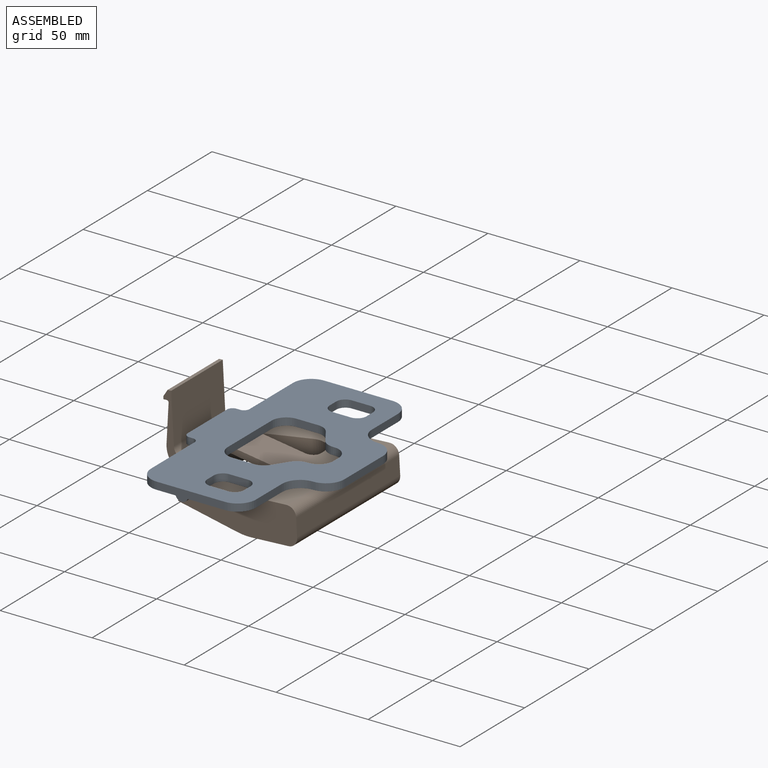
[diagram: assembled view]
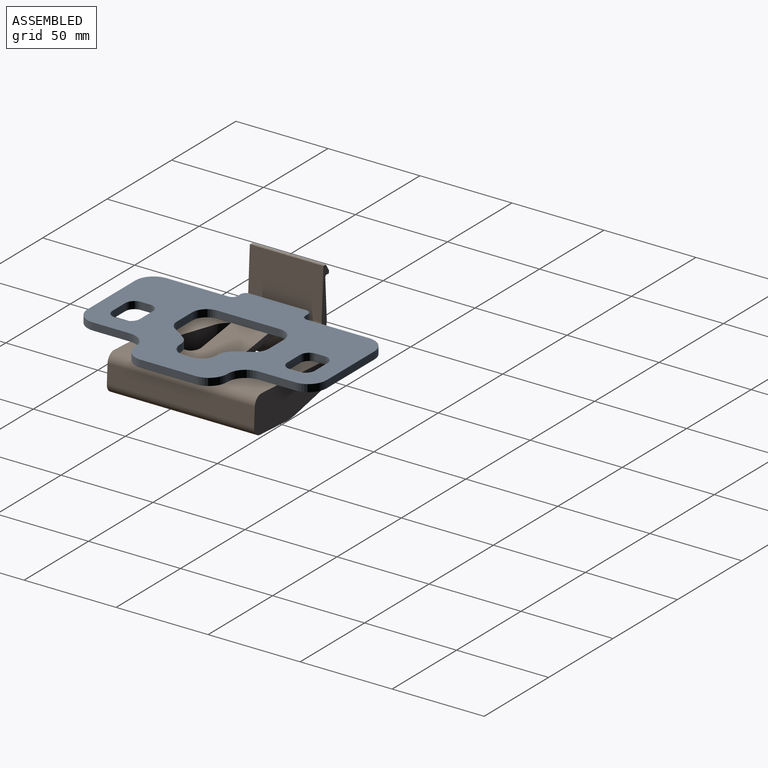
[diagram: assembled view, second angle]
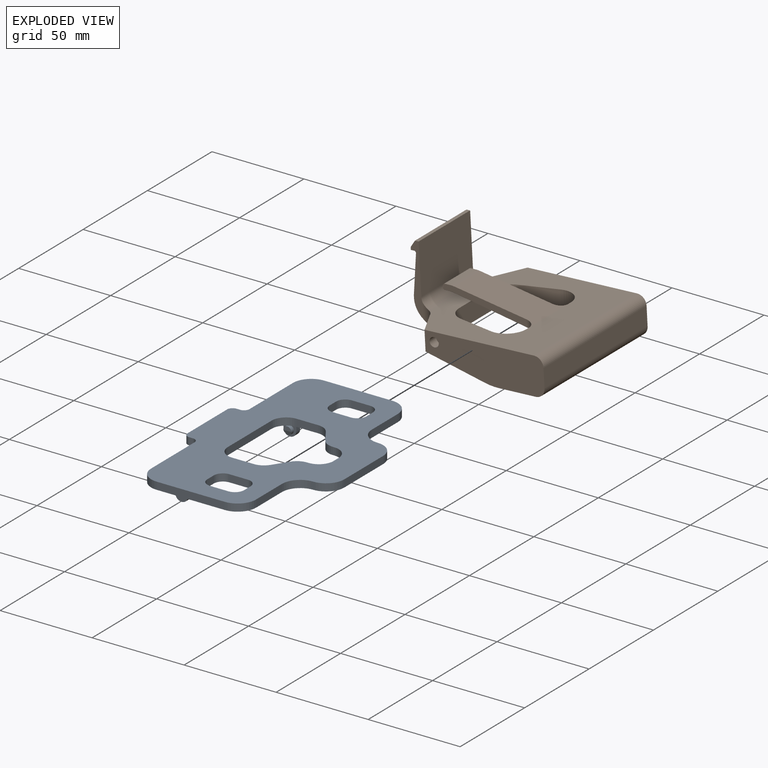
[diagram: exploded view]
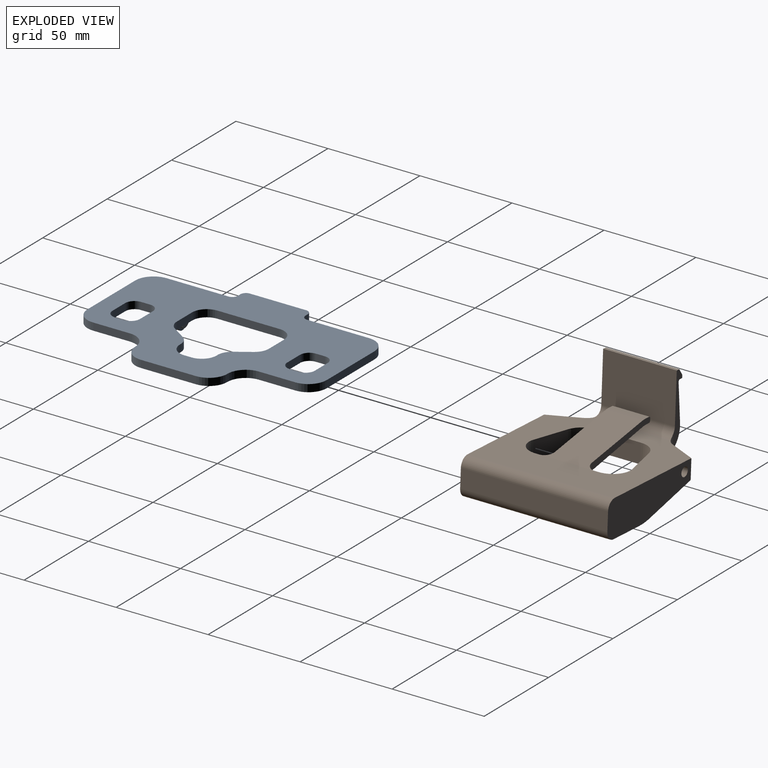
[diagram: exploded view, second angle]
ASSEMBLY  parts=2 mates=2
PART A: 80 faces, bbox 85x130x18.5 mm
  f0: plane 130x85mm, normal (0,0,1), area 5761.4mm2, adj f9,f10,f11,f12,f13,f14,f15,f16
  f1: plane 130x85mm, normal (0,0,-1), area 6305.4mm2, adj f9,f10,f11,f12,f13,f14,f15,f16
  f2: plane 4.33x2.17mm, normal (0,1,0), area 7.4mm2, adj f3,f42
  f3: cylinder r=2.17mm len=4.33mm, axis (0,-1,0), area 23.8mm2, adj f2,f8,f42
  f4: plane 6x3.58mm, normal (1,0,0), area 18.6mm2, adj f5,f7,f8,f35,f41
  f5: cylinder r=3.5mm len=7mm, axis (0,1,0), area 33mm2, adj f4,f6,f7,f8
  f6: plane 6x3.58mm, normal (-1,0,0), area 18.6mm2, adj f5,f7,f8,f35,f39
  f7: plane 7x6.5mm, normal (0,-1,0), area 40.2mm2, adj f4,f5,f6,f35
  f8: plane 9.5x7mm, normal (0,1,0), area 46.5mm2, adj f3,f4,f5,f6,f40
  f9: plane 33.67x4mm, normal (-1,0,0), area 134.7mm2, adj f0,f1,f21,f39,f45
  f10: plane 20x4mm, normal (1,0,0), area 80mm2, adj f0,f1,f20,f26
  f11: plane 20x4mm, normal (1,0,0), area 80mm2, adj f0,f1,f22,f24
  f12: plane 33.67x4mm, normal (-1,0,0), area 134.7mm2, adj f0,f1,f19,f36,f44
  f13: plane 37x4mm, normal (0,-1,0), area 148mm2, adj f0,f1,f21,f22
  f14: plane 37x4mm, normal (0,1,0), area 148mm2, adj f0,f1,f19,f20
  f15: plane 30x4mm, normal (1,0,0), area 120mm2, adj f0,f1,f23,f25
  f16: plane 4x2mm, normal (0,1,0), area 8mm2, adj f0,f1,f44,f46
  f17: plane 4x2mm, normal (0,-1,0), area 8mm2, adj f0,f1,f45,f47
  f18: plane 30.67x4mm, normal (-1,0,0), area 122.7mm2, adj f0,f1,f46,f47
  f19: cylinder r=10mm len=10mm, axis (0,0,-1), area 62.8mm2, adj f0,f1,f12,f14
  f20: cylinder r=10mm len=10mm, axis (0,0,-1), area 62.8mm2, adj f0,f1,f10,f14
  f21: cylinder r=10mm len=10mm, axis (0,0,1), area 62.8mm2, adj f0,f1,f9,f13
  f22: cylinder r=10mm len=10mm, axis (0,0,1), area 62.8mm2, adj f0,f1,f11,f13
  f23: cylinder r=10mm len=10mm, axis (0,0,-1), area 62.8mm2, adj f0,f1,f15,f24
  f24: cylinder r=10mm len=10mm, axis (0,0,-1), area 62.8mm2, adj f0,f1,f11,f23
  f25: cylinder r=10mm len=10mm, axis (0,0,1), area 62.8mm2, adj f0,f1,f15,f26
  f26: cylinder r=10mm len=10mm, axis (0,0,1), area 62.8mm2, adj f0,f1,f10,f25
  f27: plane 6x3.58mm, normal (-1,0,0), area 18.6mm2, adj f28,f30,f31,f34,f36
  f28: cylinder r=3.5mm len=7mm, axis (0,-1,0), area 33mm2, adj f27,f29,f30,f31
  f29: plane 6x3.58mm, normal (1,0,0), area 18.6mm2, adj f28,f30,f31,f34,f38
  f30: plane 7x6.5mm, normal (0,1,0), area 40.2mm2, adj f27,f28,f29,f34
  f31: plane 9.5x7mm, normal (0,-1,0), area 46.5mm2, adj f27,f28,f29,f32,f37
  f32: cylinder r=2.17mm len=4.33mm, axis (0,1,0), area 23.8mm2, adj f31,f33,f43
  f33: plane 4.33x2.17mm, normal (0,-1,0), area 7.4mm2, adj f32,f43
  f34: cylinder r=8mm len=17mm, axis (1,0,0), area 123.6mm2, adj f0,f27,f29,f30,f36,f38
  f35: cylinder r=8mm len=17mm, axis (1,0,0), area 123.6mm2, adj f0,f4,f6,f7,f39,f41
  f36: cylinder r=5mm len=16mm, axis (0,1,0), area 66.9mm2, adj f12,f27,f34,f37
  f37: cylinder r=5mm len=17mm, axis (-1,0,0), area 83.5mm2, adj f0,f31,f36,f38
  f38: cylinder r=5mm len=16mm, axis (0,1,0), area 66.9mm2, adj f0,f29,f34,f37
  f39: cylinder r=5mm len=16mm, axis (0,1,0), area 66.9mm2, adj f6,f9,f35,f40
  f40: cylinder r=5mm len=17mm, axis (-1,0,0), area 83.5mm2, adj f0,f8,f39,f41
  f41: cylinder r=5mm len=16mm, axis (0,1,0), area 66.9mm2, adj f0,f4,f35,f40
  f42: plane 4.33x2.17mm, normal (0,0.94,0.34), area 7.8mm2, adj f2,f3
  f43: plane 4.33x2.17mm, normal (0,-0.94,0.34), area 7.8mm2, adj f32,f33
  f44: cylinder r=3mm len=4mm, axis (0,0,-1), area 18.8mm2, adj f0,f1,f12,f16
  f45: cylinder r=3mm len=4mm, axis (0,0,1), area 18.8mm2, adj f0,f1,f9,f17
  f46: cylinder r=3mm len=4mm, axis (0,0,-1), area 18.8mm2, adj f0,f1,f16,f18
  f47: cylinder r=3mm len=4mm, axis (0,0,1), area 18.8mm2, adj f0,f1,f17,f18
  f48: plane 4x4mm, normal (-1,0,0), area 16mm2, adj f0,f1,f49,f63
  f49: cylinder r=8mm len=8mm, axis (0,0,1), area 50.3mm2, adj f0,f1,f48,f50
  f50: plane 4x0.72mm, normal (0,-1,0), area 2.9mm2, adj f0,f1,f49,f51
  f51: cylinder r=8mm len=6.66mm, axis (0,0,1), area 31.4mm2, adj f0,f1,f50,f52
  f52: plane 7.88x5.25mm, normal (-0.83,-0.55,0), area 37.9mm2, adj f0,f1,f51,f53
  f53: cylinder r=8mm len=6.66mm, axis (0,0,1), area 31.4mm2, adj f0,f1,f52,f54
  f54: plane 11.72x4mm, normal (0,-1,0), area 46.9mm2, adj f0,f1,f53,f55
  f55: cylinder r=8mm len=8mm, axis (0,0,1), area 50.3mm2, adj f0,f1,f54,f56
  f56: plane 34x4mm, normal (1,0,0), area 136mm2, adj f0,f1,f55,f57
  f57: cylinder r=8mm len=8mm, axis (0,0,1), area 50.3mm2, adj f0,f1,f56,f58
  f58: plane 11.72x4mm, normal (0,1,0), area 46.9mm2, adj f0,f1,f57,f59
  f59: cylinder r=8mm len=6.66mm, axis (0,0,1), area 31.4mm2, adj f0,f1,f58,f60
  f60: plane 7.88x5.25mm, normal (-0.83,0.55,0), area 37.9mm2, adj f0,f1,f59,f61
  f61: cylinder r=8mm len=6.66mm, axis (0,0,1), area 31.4mm2, adj f0,f1,f60,f62
  f62: plane 4x0.72mm, normal (0,1,0), area 2.9mm2, adj f0,f1,f61,f63
  f63: cylinder r=8mm len=8mm, axis (0,0,1), area 50.3mm2, adj f0,f1,f48,f62
  f64: plane 5x4mm, normal (-1,0,0), area 20mm2, adj f0,f1,f65,f71
  f65: cylinder r=5mm len=5mm, axis (0,0,1), area 31.4mm2, adj f0,f1,f64,f66
  f66: plane 10x4mm, normal (0,-1,0), area 40mm2, adj f0,f1,f65,f67
  f67: cylinder r=5mm len=5mm, axis (0,0,1), area 31.4mm2, adj f0,f1,f66,f68
  f68: plane 5x4mm, normal (1,0,0), area 20mm2, adj f0,f1,f67,f69
  f69: cylinder r=5mm len=5mm, axis (0,0,1), area 31.4mm2, adj f0,f1,f68,f70
  f70: plane 10x4mm, normal (0,1,0), area 40mm2, adj f0,f1,f69,f71
  f71: cylinder r=5mm len=5mm, axis (0,0,1), area 31.4mm2, adj f0,f1,f64,f70
  f72: plane 5x4mm, normal (1,0,0), area 20mm2, adj f0,f1,f73,f79
  f73: cylinder r=5mm len=5mm, axis (0,0,1), area 31.4mm2, adj f0,f1,f72,f74
  f74: plane 10x4mm, normal (0,1,0), area 40mm2, adj f0,f1,f73,f75
  f75: cylinder r=5mm len=5mm, axis (0,0,1), area 31.4mm2, adj f0,f1,f74,f76
  f76: plane 5x4mm, normal (-1,0,0), area 20mm2, adj f0,f1,f75,f77
  f77: cylinder r=5mm len=5mm, axis (0,0,1), area 31.4mm2, adj f0,f1,f76,f78
  f78: plane 10x4mm, normal (0,-1,0), area 40mm2, adj f0,f1,f77,f79
  f79: cylinder r=5mm len=5mm, axis (0,0,1), area 31.4mm2, adj f0,f1,f72,f78
PART B: 69 faces, bbox 84.6x80.1x52.1 mm
  f0: plane 4.07x2.19mm, normal (-1,0,0), area 8.7mm2, adj f2,f34,f40,f41,f55
  f1: plane 4.07x2.19mm, normal (-1,0,0), area 8.7mm2, adj f2,f33,f39,f40,f56
  f2: plane 80x70mm, normal (0,0,1), area 3482.6mm2, adj f0,f1,f5,f14,f15,f16,f22,f23
  f3: cylinder r=30mm len=22.81mm, axis (0,1,0), area 121mm2, adj f13,f14,f18,f33
  f4: plane 40x1.43mm, normal (-1,0,0), area 57.2mm2, adj f8,f9,f21,f24
  f5: cylinder r=5mm len=42.7mm, axis (0,1,0), area 318.2mm2, adj f2,f6,f21,f22,f24,f25
  f6: plane 40x27mm, normal (1,0,0), area 1080.1mm2, adj f5,f7,f21,f24
  f7: plane 40x2mm, normal (0,0,1), area 80mm2, adj f6,f8,f21,f24
  f8: plane 40x3.57mm, normal (-0.82,0,0.57), area 174.3mm2, adj f4,f7,f21,f24
  f9: plane 40x1.75mm, normal (0,0,-1), area 69.8mm2, adj f4,f10,f21,f24
  f10: cylinder r=1mm len=40mm, axis (0,1,0), area 67.2mm2, adj f9,f11,f21,f24
  f11: plane 40x20.48mm, normal (-0.99,0,0.11), area 823.9mm2, adj f10,f12,f21,f24
  f12: cylinder r=12.29mm len=42.78mm, axis (0,1,0), area 702.5mm2, adj f11,f13,f21,f22,f24,f25
  f13: plane 80.1x42.34mm, normal (-0.26,0,-0.97), area 1696.4mm2, adj f3,f12,f14,f15,f17,f22,f23,f25
  f14: plane 64.5x20mm, normal (0,-1,0), area 1091.1mm2, adj f2,f3,f13,f16,f18,f19,f20,f26
  f15: plane 64.5x20mm, normal (0,1,0), area 1091.1mm2, adj f2,f13,f16,f17,f18,f19,f20,f23
  f16: cylinder r=5mm len=80mm, axis (0,1,0), area 628.3mm2, adj f2,f14,f15,f20
  f17: cylinder r=30mm len=22.81mm, axis (0,1,0), area 121mm2, adj f13,f15,f18,f34
  f18: plane 80x20.01mm, normal (0,0,-1), area 1600.6mm2, adj f3,f14,f15,f17,f19,f27
  f19: cylinder r=5mm len=80mm, axis (0,1,0), area 628.3mm2, adj f14,f15,f18,f20
  f20: plane 80x10mm, normal (1,0,0), area 800mm2, adj f14,f15,f16,f19
  f21: plane 37.53x5.06mm, normal (0,1,0), area 115.2mm2, adj f4,f5,f6,f7,f8,f9,f10,f11
  f22: cylinder r=8mm len=11.21mm, axis (0,0,-1), area 69.6mm2, adj f2,f5,f12,f13,f21,f23
  f23: plane 15.58x10.56mm, normal (-0.89,0.45,0), area 166mm2, adj f2,f13,f15,f22
  f24: plane 37.53x5.06mm, normal (0,-1,0), area 115.2mm2, adj f4,f5,f6,f7,f8,f9,f10,f11
  f25: cylinder r=8mm len=11.21mm, axis (0,0,-1), area 69.6mm2, adj f2,f5,f12,f13,f24,f26
  f26: plane 15.58x10.56mm, normal (-0.89,-0.45,0), area 166mm2, adj f2,f13,f14,f25
  f27: plane 34.38x4.1mm, normal (-1,0,0), area 137.6mm2, adj f18,f33,f34,f37,f38,f42
  f28: plane 20x17.74mm, normal (0.24,0.97,0), area 311.1mm2, adj f2,f13,f29,f33
  f29: cylinder r=10mm len=12.44mm, axis (0,0,-1), area 147.7mm2, adj f2,f13,f28,f30
  f30: plane 24.38x10.43mm, normal (1,0,0), area 254.3mm2, adj f2,f13,f29,f31
  f31: cylinder r=10mm len=12.44mm, axis (0,0,-1), area 147.7mm2, adj f2,f13,f30,f32
  f32: plane 20x17.74mm, normal (0.24,-0.97,0), area 311.1mm2, adj f2,f13,f31,f34
  f33: cylinder r=10mm len=20mm, axis (0,0,-1), area 314.1mm2, adj f1,f2,f3,f13,f27,f28,f35,f38
  f34: cylinder r=10mm len=20mm, axis (0,0,-1), area 314.1mm2, adj f0,f2,f13,f17,f27,f32,f36,f41
  f35: plane 15.84x2.03mm, normal (0,1,0), area 32.2mm2, adj f33,f38,f39,f68
  f36: plane 15.84x2.03mm, normal (0,-1,0), area 32.2mm2, adj f34,f41,f42,f61
  f37: plane 32.38x15mm, normal (0,0,1), area 485.8mm2, adj f27,f38,f42,f65
  f38: cylinder r=5mm len=15.84mm, axis (-1,0,0), area 120.7mm2, adj f27,f33,f35,f37,f67
  f39: cylinder r=5mm len=15.84mm, axis (-1,0,0), area 120.7mm2, adj f1,f33,f35,f40,f66
  f40: plane 32.38x15mm, normal (0,0,-1), area 485.8mm2, adj f0,f1,f39,f41,f49,f64
  f41: cylinder r=5mm len=15.84mm, axis (-1,0,0), area 120.7mm2, adj f0,f34,f36,f40,f62
  f42: cylinder r=5mm len=15.84mm, axis (-1,0,0), area 120.7mm2, adj f27,f34,f36,f37,f63
  f43: plane 32.38x2.03mm, normal (-1,0,0), area 65.8mm2, adj f61,f64,f65,f68
  f44: cylinder r=2.5mm len=5mm, axis (0,-1,0), area 78.5mm2, adj f14,f45
  f45: plane 5x5mm, normal (0,-1,0), area 19.6mm2, adj f44
  f46: plane 20x1mm, normal (-1,0,0), area 20mm2, adj f53,f54,f59,f60
  f47: plane 20x1.78mm, normal (0,0,-1), area 35.6mm2, adj f48,f53,f54,f59
  f48: cylinder r=15mm len=20mm, axis (0,1,0), area 64.6mm2, adj f47,f49,f53,f54
  f49: plane 44.02x30mm, normal (-0.21,0,-0.98), area 912.1mm2, adj f40,f48,f53,f54,f55,f56
  f50: plane 43.54x30mm, normal (0.2,0,0.98), area 899.1mm2, adj f2,f51,f53,f54,f55,f56
  f51: cylinder r=15mm len=20mm, axis (0,1,0), area 59.2mm2, adj f50,f52,f53,f54
  f52: plane 20x2.51mm, normal (0,0,1), area 50.3mm2, adj f51,f53,f54,f60
  f53: plane 45x11.87mm, normal (0,-1,0), area 154.7mm2, adj f46,f47,f48,f49,f50,f51,f52,f56
  f54: plane 45x11.87mm, normal (0,1,0), area 154.7mm2, adj f46,f47,f48,f49,f50,f51,f52,f55
  f55: cylinder r=5mm len=5mm, axis (0,0,1), area 30.9mm2, adj f0,f49,f50,f54
  f56: cylinder r=5mm len=5mm, axis (0,0,-1), area 30.9mm2, adj f1,f49,f50,f53
  f57: cylinder r=2.5mm len=5mm, axis (0,1,0), area 78.5mm2, adj f15,f58
  f58: plane 5x5mm, normal (0,1,0), area 19.6mm2, adj f57
  f59: cylinder r=1mm len=20mm, axis (0,1,0), area 31.4mm2, adj f46,f47,f53,f54
  f60: cylinder r=1mm len=20mm, axis (0,1,0), area 31.4mm2, adj f46,f52,f53,f54
  f61: cylinder r=5mm len=5mm, axis (0,0,-1), area 16mm2, adj f36,f43,f62,f63
  f62: sphere r=5mm, area 39.3mm2, adj f41,f61,f64
  f63: sphere r=5mm, area 39.3mm2, adj f42,f61,f65
  f64: cylinder r=5mm len=32.38mm, axis (0,1,0), area 254.3mm2, adj f40,f43,f62,f66
  f65: cylinder r=5mm len=32.38mm, axis (0,-1,0), area 254.3mm2, adj f37,f43,f63,f67
  f66: sphere r=5mm, area 39.3mm2, adj f39,f64,f68
  f67: sphere r=5mm, area 39.3mm2, adj f38,f65,f68
  f68: cylinder r=5mm len=5mm, axis (0,0,1), area 16mm2, adj f35,f43,f66,f67
PLACE A rot(axis=(1,0,0),180deg) t=(-114.49,-37.74,59.05)mm fixed
PLACE B rot(axis=(0,-1,0),3.1deg) t=(-107.42,-37.24,46.55)mm
MATE cylindrical A.f3 <-> B.f44  axis (0,1,0) through (-134.49,2.76,44.05)mm
MATE planar B.f15 <-> A.f8  axis (0,1,0) through (-103.75,2.76,41.68)mm
